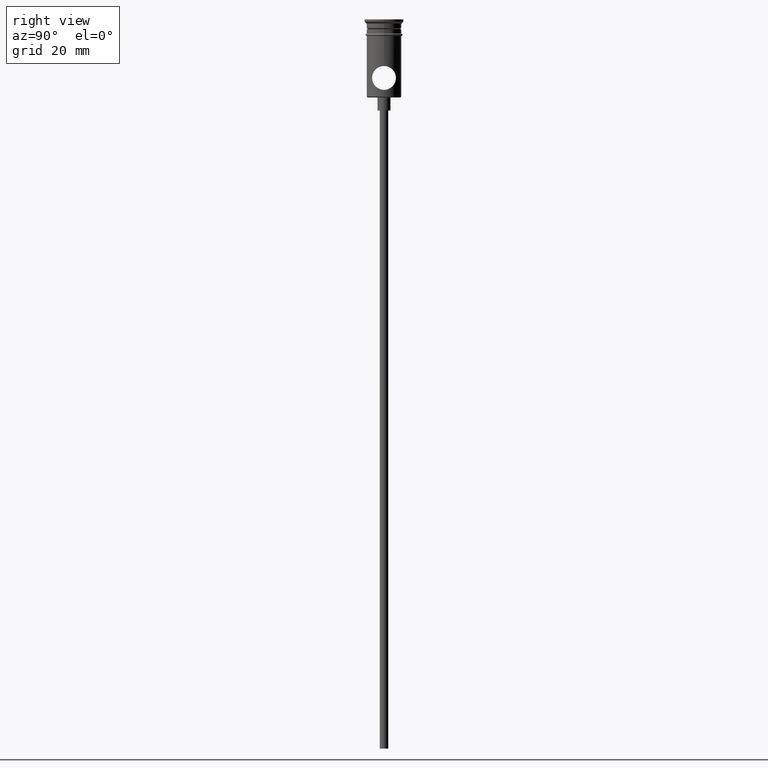
[diagram: clean part render]
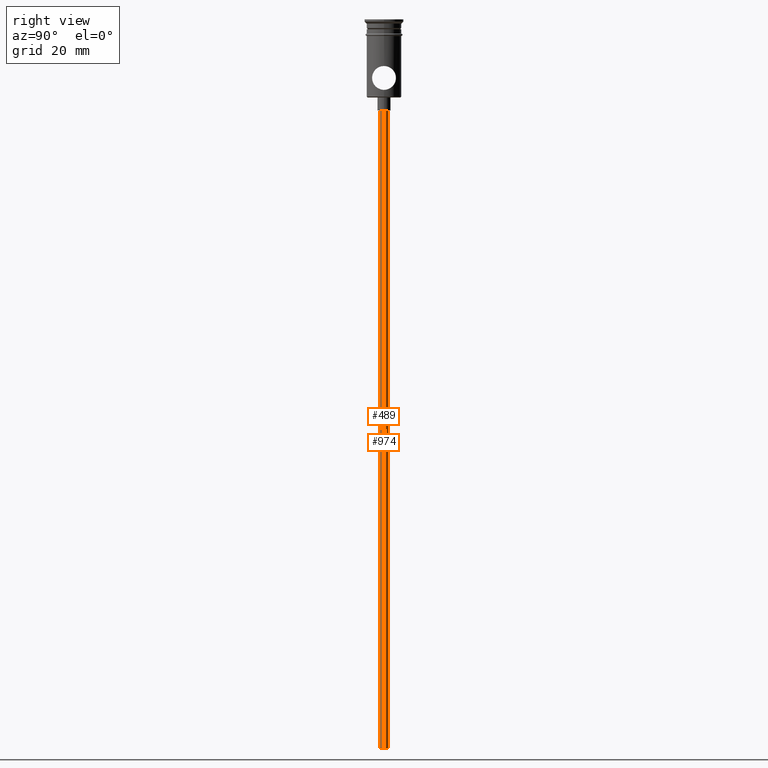
[diagram: same view with one multi-face feature highlighted, each face labeled with its STEP entity id]
A machine part, right view. The highlighted faces form ONE feature: a constant-radius fillet chain: 2 tangent blend faces with common blend radius 1 mm. The faces share edges in the B-rep.
Their STEP definitions:
[1] entity #489 (Cylinder):
#38 = AXIS2_PLACEMENT_3D ( 'NONE', #368, #1231, #1019 ) ;
#88 = DIRECTION ( 'NONE',  ( -1.000000000000000000, 0.000000000000000000, 0.000000000000000000 ) ) ;
#99 = EDGE_CURVE ( 'NONE', #1052, #414, #1247, .T. ) ;
#117 = FACE_OUTER_BOUND ( 'NONE', #946, .T. ) ;
#198 = CARTESIAN_POINT ( 'NONE',  ( 0.9999999999999997780, 0.000000000000000000, -167.9999999999999716 ) ) ;
#368 = CARTESIAN_POINT ( 'NONE',  ( 0.000000000000000000, 0.000000000000000000, -167.9999999999999716 ) ) ;
#395 = DIRECTION ( 'NONE',  ( -1.000000000000000000, 0.000000000000000000, 0.000000000000000000 ) ) ;
#397 = CARTESIAN_POINT ( 'NONE',  ( 0.9999999999999997780, 0.000000000000000000, -167.9999999999999716 ) ) ;
#403 = ORIENTED_EDGE ( 'NONE', *, *, #1261, .F. ) ;
#414 = VERTEX_POINT ( 'NONE', #470 ) ;
#418 = DIRECTION ( 'NONE',  ( -0.000000000000000000, -0.000000000000000000, 1.000000000000000000 ) ) ;
#470 = CARTESIAN_POINT ( 'NONE',  ( -0.9999999999999997780, 1.224646799147352961E-16, -167.9999999999999716 ) ) ;
#489 = ADVANCED_FACE ( 'NONE', ( #117 ), #772, .T. ) ;
#504 = VECTOR ( 'NONE', #1068, 1000.000000000000000 ) ;
#589 = VECTOR ( 'NONE', #418, 1000.000000000000000 ) ;
#602 = CARTESIAN_POINT ( 'NONE',  ( 0.9999999999999997780, 0.000000000000000000, -20.99999999999999645 ) ) ;
#609 = VERTEX_POINT ( 'NONE', #602 ) ;
#653 = LINE ( 'NONE', #984, #589 ) ;
#663 = CARTESIAN_POINT ( 'NONE',  ( 0.000000000000000000, 0.000000000000000000, -20.99999999999999645 ) ) ;
#736 = LINE ( 'NONE', #198, #504 ) ;
#744 = AXIS2_PLACEMENT_3D ( 'NONE', #663, #1173, #88 ) ;
#772 = CYLINDRICAL_SURFACE ( 'NONE', #38, 0.9999999999999997780 ) ;
#810 = VERTEX_POINT ( 'NONE', #872 ) ;
#839 = AXIS2_PLACEMENT_3D ( 'NONE', #1370, #1027, #395 ) ;
#872 = CARTESIAN_POINT ( 'NONE',  ( -0.9999999999999997780, 1.224646799147352961E-16, -20.99999999999999645 ) ) ;
#946 = EDGE_LOOP ( 'NONE', ( #403, #1399, #952, #1233 ) ) ;
#952 = ORIENTED_EDGE ( 'NONE', *, *, #1387, .T. ) ;
#984 = CARTESIAN_POINT ( 'NONE',  ( -0.9999999999999997780, 1.224646799147352961E-16, -167.9999999999999716 ) ) ;
#1019 = DIRECTION ( 'NONE',  ( 1.000000000000000000, 0.000000000000000000, 0.000000000000000000 ) ) ;
#1027 = DIRECTION ( 'NONE',  ( 0.000000000000000000, 0.000000000000000000, -1.000000000000000000 ) ) ;
#1052 = VERTEX_POINT ( 'NONE', #397 ) ;
#1068 = DIRECTION ( 'NONE',  ( -0.000000000000000000, -0.000000000000000000, 1.000000000000000000 ) ) ;
#1173 = DIRECTION ( 'NONE',  ( 0.000000000000000000, 0.000000000000000000, -1.000000000000000000 ) ) ;
#1177 = CIRCLE ( 'NONE', #744, 0.9999999999999997780 ) ;
#1231 = DIRECTION ( 'NONE',  ( -0.000000000000000000, -0.000000000000000000, 1.000000000000000000 ) ) ;
#1233 = ORIENTED_EDGE ( 'NONE', *, *, #1362, .T. ) ;
#1247 = CIRCLE ( 'NONE', #839, 0.9999999999999997780 ) ;
#1261 = EDGE_CURVE ( 'NONE', #414, #810, #653, .T. ) ;
#1362 = EDGE_CURVE ( 'NONE', #609, #810, #1177, .T. ) ;
#1370 = CARTESIAN_POINT ( 'NONE',  ( 0.000000000000000000, 0.000000000000000000, -167.9999999999999716 ) ) ;
#1387 = EDGE_CURVE ( 'NONE', #1052, #609, #736, .T. ) ;
#1399 = ORIENTED_EDGE ( 'NONE', *, *, #99, .F. ) ;
[2] entity #974 (Cylinder):
#6 = EDGE_LOOP ( 'NONE', ( #114, #1007, #292, #448 ) ) ;
#33 = DIRECTION ( 'NONE',  ( 1.000000000000000000, 0.000000000000000000, 0.000000000000000000 ) ) ;
#114 = ORIENTED_EDGE ( 'NONE', *, *, #476, .F. ) ;
#198 = CARTESIAN_POINT ( 'NONE',  ( 0.9999999999999997780, 0.000000000000000000, -167.9999999999999716 ) ) ;
#260 = DIRECTION ( 'NONE',  ( -1.000000000000000000, 0.000000000000000000, 0.000000000000000000 ) ) ;
#263 = AXIS2_PLACEMENT_3D ( 'NONE', #798, #1318, #1099 ) ;
#292 = ORIENTED_EDGE ( 'NONE', *, *, #948, .T. ) ;
#367 = DIRECTION ( 'NONE',  ( -0.000000000000000000, -0.000000000000000000, 1.000000000000000000 ) ) ;
#397 = CARTESIAN_POINT ( 'NONE',  ( 0.9999999999999997780, 0.000000000000000000, -167.9999999999999716 ) ) ;
#414 = VERTEX_POINT ( 'NONE', #470 ) ;
#418 = DIRECTION ( 'NONE',  ( -0.000000000000000000, -0.000000000000000000, 1.000000000000000000 ) ) ;
#448 = ORIENTED_EDGE ( 'NONE', *, *, #1387, .F. ) ;
#470 = CARTESIAN_POINT ( 'NONE',  ( -0.9999999999999997780, 1.224646799147352961E-16, -167.9999999999999716 ) ) ;
#476 = EDGE_CURVE ( 'NONE', #414, #1052, #1041, .T. ) ;
#504 = VECTOR ( 'NONE', #1068, 1000.000000000000000 ) ;
#541 = AXIS2_PLACEMENT_3D ( 'NONE', #795, #1345, #260 ) ;
#589 = VECTOR ( 'NONE', #418, 1000.000000000000000 ) ;
#602 = CARTESIAN_POINT ( 'NONE',  ( 0.9999999999999997780, 0.000000000000000000, -20.99999999999999645 ) ) ;
#609 = VERTEX_POINT ( 'NONE', #602 ) ;
#653 = LINE ( 'NONE', #984, #589 ) ;
#693 = FACE_OUTER_BOUND ( 'NONE', #6, .T. ) ;
#736 = LINE ( 'NONE', #198, #504 ) ;
#795 = CARTESIAN_POINT ( 'NONE',  ( 0.000000000000000000, 0.000000000000000000, -20.99999999999999645 ) ) ;
#798 = CARTESIAN_POINT ( 'NONE',  ( 0.000000000000000000, 0.000000000000000000, -167.9999999999999716 ) ) ;
#810 = VERTEX_POINT ( 'NONE', #872 ) ;
#872 = CARTESIAN_POINT ( 'NONE',  ( -0.9999999999999997780, 1.224646799147352961E-16, -20.99999999999999645 ) ) ;
#909 = CYLINDRICAL_SURFACE ( 'NONE', #958, 0.9999999999999997780 ) ;
#948 = EDGE_CURVE ( 'NONE', #810, #609, #1153, .T. ) ;
#958 = AXIS2_PLACEMENT_3D ( 'NONE', #1017, #367, #33 ) ;
#974 = ADVANCED_FACE ( 'NONE', ( #693 ), #909, .T. ) ;
#984 = CARTESIAN_POINT ( 'NONE',  ( -0.9999999999999997780, 1.224646799147352961E-16, -167.9999999999999716 ) ) ;
#1007 = ORIENTED_EDGE ( 'NONE', *, *, #1261, .T. ) ;
#1017 = CARTESIAN_POINT ( 'NONE',  ( 0.000000000000000000, 0.000000000000000000, -167.9999999999999716 ) ) ;
#1041 = CIRCLE ( 'NONE', #263, 0.9999999999999997780 ) ;
#1052 = VERTEX_POINT ( 'NONE', #397 ) ;
#1068 = DIRECTION ( 'NONE',  ( -0.000000000000000000, -0.000000000000000000, 1.000000000000000000 ) ) ;
#1099 = DIRECTION ( 'NONE',  ( -1.000000000000000000, 0.000000000000000000, 0.000000000000000000 ) ) ;
#1153 = CIRCLE ( 'NONE', #541, 0.9999999999999997780 ) ;
#1261 = EDGE_CURVE ( 'NONE', #414, #810, #653, .T. ) ;
#1318 = DIRECTION ( 'NONE',  ( 0.000000000000000000, 0.000000000000000000, -1.000000000000000000 ) ) ;
#1345 = DIRECTION ( 'NONE',  ( 0.000000000000000000, 0.000000000000000000, -1.000000000000000000 ) ) ;
#1387 = EDGE_CURVE ( 'NONE', #1052, #609, #736, .T. ) ;